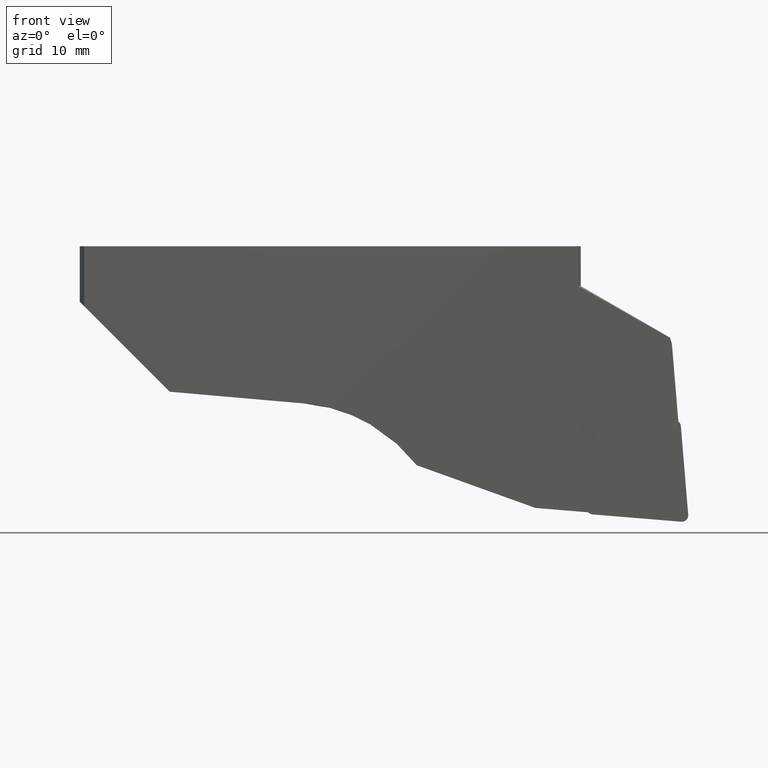
[diagram: clean part render]
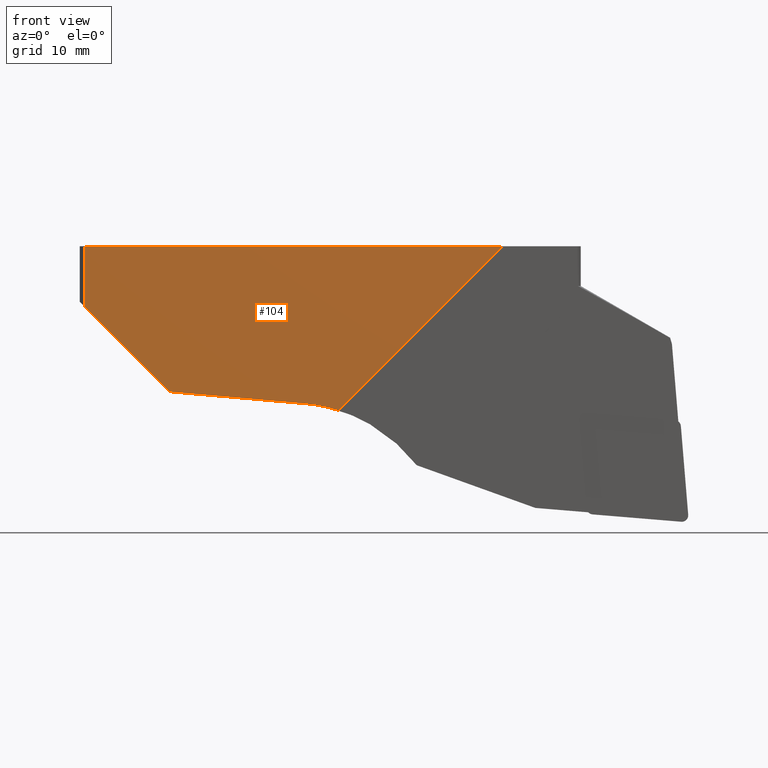
[diagram: same view with one face highlighted and labeled with its STEP entity id]
A machine part, front view. The second image highlights one B-rep face of the part: STEP entity #104.
In plain terms, the highlighted planar face has unit normal (0, -1, 0).
Its self-contained STEP definition (entity closure, byte-faithful):
#104=ADVANCED_FACE('',(#166),#167,.T.);
#166=FACE_OUTER_BOUND('',#230,.T.);
#167=PLANE('',#231);
#230=EDGE_LOOP('',(#484,#485,#486,#487,#488,#489));
#231=AXIS2_PLACEMENT_3D('',#490,#491,#492);
#484=ORIENTED_EDGE('',*,*,#553,.T.);
#485=ORIENTED_EDGE('',*,*,#587,.T.);
#486=ORIENTED_EDGE('',*,*,#574,.T.);
#487=ORIENTED_EDGE('',*,*,#591,.T.);
#488=ORIENTED_EDGE('',*,*,#592,.T.);
#489=ORIENTED_EDGE('',*,*,#588,.T.);
#490=CARTESIAN_POINT('',(-4.633448811208,-6.00000000000001,-10.3148239949214));
#491=DIRECTION('',(0.0,-1.0,0.0));
#492=DIRECTION('',(0.0,0.0,1.0));
#553=EDGE_CURVE('',#675,#673,#676,.T.);
#574=EDGE_CURVE('',#711,#709,#712,.T.);
#587=EDGE_CURVE('',#673,#711,#729,.T.);
#588=EDGE_CURVE('',#730,#675,#731,.T.);
#591=EDGE_CURVE('',#709,#733,#735,.T.);
#592=EDGE_CURVE('',#733,#730,#736,.T.);
#673=VERTEX_POINT('',#850);
#675=VERTEX_POINT('',#853);
#676=LINE('',#854,#855);
#709=VERTEX_POINT('',#944);
#711=VERTEX_POINT('',#946);
#712=LINE('',#947,#948);
#729=LINE('',#974,#975);
#730=VERTEX_POINT('',#976);
#731=CIRCLE('',#977,20.0);
#733=VERTEX_POINT('',#980);
#735=LINE('',#983,#984);
#736=LINE('',#985,#986);
#850=CARTESIAN_POINT('',(21.6563945697165,-5.99999999999999,0.0));
#853=CARTESIAN_POINT('',(1.0267465691446,-5.99999999999997,-20.6296479898429));
#854=CARTESIAN_POINT('',(1.0267465691446,-5.99999999999997,-20.6296479898429));
#855=VECTOR('',#1075,29.1747279818052);
#944=CARTESIAN_POINT('',(-30.9232921921325,-5.99999999999998,-7.5767078078675));
#946=CARTESIAN_POINT('',(-30.9232921921325,-5.99999999999998,0.0));
#947=CARTESIAN_POINT('',(-30.9232921921325,-5.99999999999998,0.0));
#948=VECTOR('',#1101,7.5767078078675);
#974=CARTESIAN_POINT('',(21.6563945697165,-5.99999999999999,0.0));
#975=VECTOR('',#1131,52.579686761849);
#976=CARTESIAN_POINT('',(-3.2568851450468,-5.99999999999999,-19.7761060381651));
#977=AXIS2_PLACEMENT_3D('',#1132,#1133,#1134);
#980=CARTESIAN_POINT('',(-20.2068212154876,-5.99999999999998,-18.2931787845124));
#983=CARTESIAN_POINT('',(-30.9232921921325,-5.99999999999998,-7.5767078078675));
#984=VECTOR('',#1137,15.1553785959489);
#985=CARTESIAN_POINT('',(-20.2068212154876,-5.99999999999998,-18.2931787845124));
#986=VECTOR('',#1138,17.0146820726);
#1075=DIRECTION('',(0.707106781370422,-7.23031161799807E-016,0.707106781002673));
#1101=DIRECTION('',(0.0,0.0,-1.0));
#1131=DIRECTION('',(-1.0,0.0,0.0));
#1132=CARTESIAN_POINT('',(-5.0,-5.99999999999997,-39.7));
#1133=DIRECTION('',(-0.0,1.0,0.0));
#1134=DIRECTION('',(1.0,0.0,0.0));
#1137=DIRECTION('',(0.707106781186547,0.0,-0.707106781186548));
#1138=DIRECTION('',(0.996194698091746,-6.52508827310403E-016,-0.087155742747657));